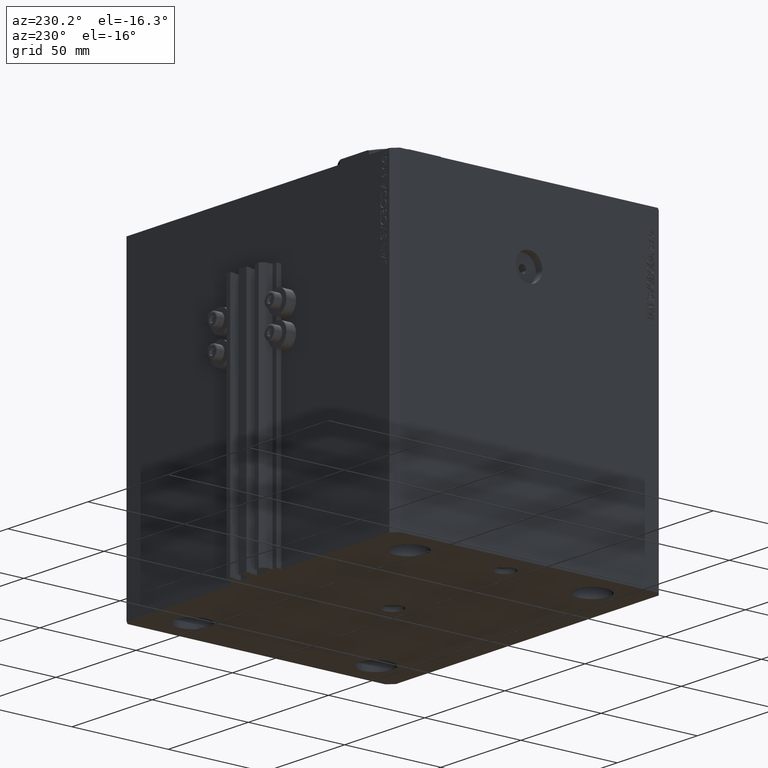
[diagram: clean part render]
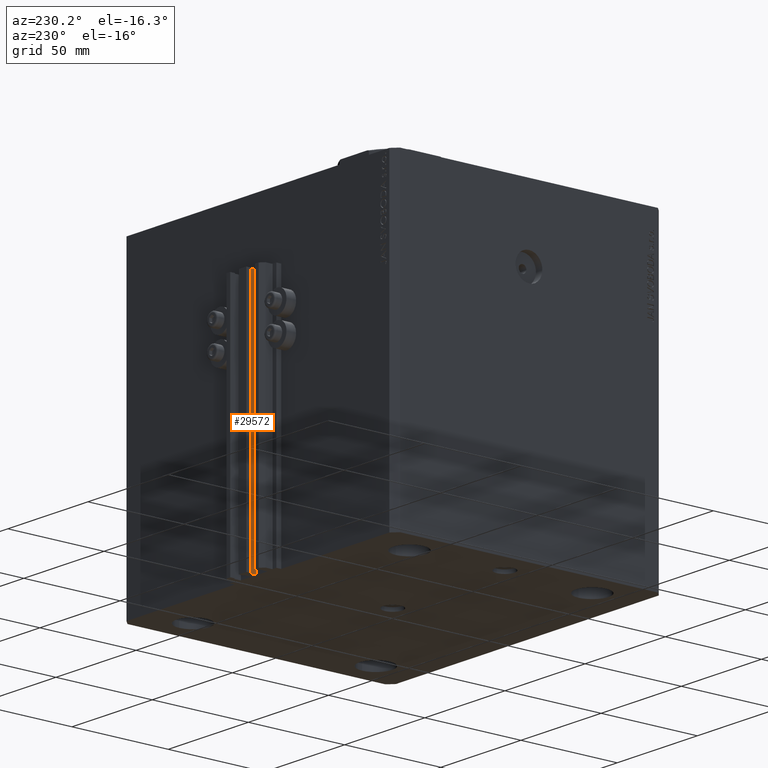
[diagram: same view with one face highlighted and labeled with its STEP entity id]
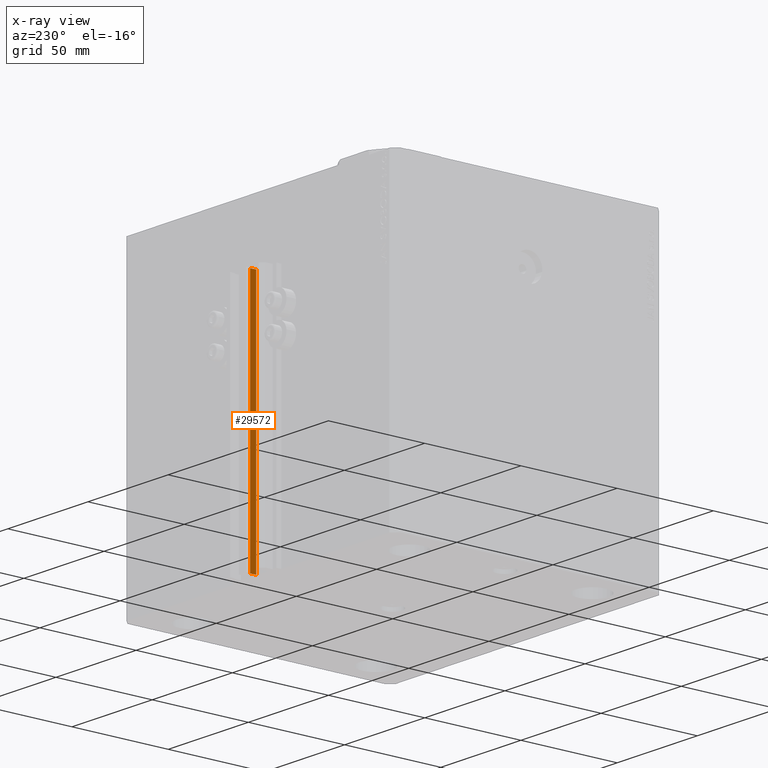
[diagram: x-ray of the same camera — body ghosted, the highlighted face saturated]
A machine part, auxiliary view. The second image highlights one B-rep face of the part: STEP entity #29572.
The next image is the same camera in x-ray: the body ghosted, the highlighted face saturated — about 0% of this face is hidden behind the body in this view.
In plain terms, the highlighted planar face has unit normal (-1, 0, 0).
Its self-contained STEP definition (entity closure, byte-faithful):
#2054 = LINE ( 'NONE', #42999, #44628 ) ;
#2714 = LINE ( 'NONE', #17308, #17366 ) ;
#2895 = CARTESIAN_POINT ( 'NONE',  ( -1.600000000000000533, 75.40000000000001990, -160.0000000000000000 ) ) ;
#2909 = ORIENTED_EDGE ( 'NONE', *, *, #36183, .T. ) ;
#4504 = VECTOR ( 'NONE', #41848, 1000.000000000000000 ) ;
#5655 = CARTESIAN_POINT ( 'NONE',  ( -1.599999999999997868, 75.40000000000001990, -33.00000000000000000 ) ) ;
#6175 = CARTESIAN_POINT ( 'NONE',  ( -1.600000000000000755, 72.20000000000001705, -33.00000000000000000 ) ) ;
#8497 = ORIENTED_EDGE ( 'NONE', *, *, #41176, .F. ) ;
#9283 = LINE ( 'NONE', #38502, #4504 ) ;
#9360 = PLANE ( 'NONE',  #27246 ) ;
#9909 = EDGE_CURVE ( 'NONE', #18674, #45426, #2054, .T. ) ;
#11500 = CARTESIAN_POINT ( 'NONE',  ( -1.599999999999997868, 75.40000000000001990, -160.0000000000000000 ) ) ;
#11728 = DIRECTION ( 'NONE',  ( 0.000000000000000000, 0.000000000000000000, 1.000000000000000000 ) ) ;
#17112 = EDGE_LOOP ( 'NONE', ( #38678, #8497, #2909, #23739 ) ) ;
#17308 = CARTESIAN_POINT ( 'NONE',  ( -1.600000000000000533, 75.40000000000001990, -33.00000000000000000 ) ) ;
#17366 = VECTOR ( 'NONE', #35760, 1000.000000000000000 ) ;
#17830 = DIRECTION ( 'NONE',  ( 0.000000000000000000, 0.000000000000000000, 1.000000000000000000 ) ) ;
#18674 = VERTEX_POINT ( 'NONE', #36890 ) ;
#22218 = VERTEX_POINT ( 'NONE', #36065 ) ;
#22501 = LINE ( 'NONE', #11500, #45033 ) ;
#23739 = ORIENTED_EDGE ( 'NONE', *, *, #9909, .T. ) ;
#27246 = AXIS2_PLACEMENT_3D ( 'NONE', #2895, #38583, #35237 ) ;
#29572 = ADVANCED_FACE ( 'NONE', ( #42652 ), #9360, .T. ) ;
#29758 = VERTEX_POINT ( 'NONE', #5655 ) ;
#30971 = EDGE_CURVE ( 'NONE', #29758, #45426, #2714, .T. ) ;
#35237 = DIRECTION ( 'NONE',  ( -6.776263578034385456E-17, -1.000000000000000000, 0.000000000000000000 ) ) ;
#35760 = DIRECTION ( 'NONE',  ( -6.776263578034385456E-17, -1.000000000000000000, 0.000000000000000000 ) ) ;
#36065 = CARTESIAN_POINT ( 'NONE',  ( -1.599999999999997868, 75.40000000000001990, -160.0000000000000000 ) ) ;
#36183 = EDGE_CURVE ( 'NONE', #22218, #18674, #9283, .T. ) ;
#36890 = CARTESIAN_POINT ( 'NONE',  ( -1.600000000000000755, 72.20000000000001705, -160.0000000000000000 ) ) ;
#38502 = CARTESIAN_POINT ( 'NONE',  ( -1.600000000000000533, 75.40000000000001990, -160.0000000000000000 ) ) ;
#38583 = DIRECTION ( 'NONE',  ( -1.000000000000000000, 6.776263578034385456E-17, 0.000000000000000000 ) ) ;
#38678 = ORIENTED_EDGE ( 'NONE', *, *, #30971, .F. ) ;
#41176 = EDGE_CURVE ( 'NONE', #22218, #29758, #22501, .T. ) ;
#41848 = DIRECTION ( 'NONE',  ( -6.776263578034385456E-17, -1.000000000000000000, 0.000000000000000000 ) ) ;
#42652 = FACE_OUTER_BOUND ( 'NONE', #17112, .T. ) ;
#42999 = CARTESIAN_POINT ( 'NONE',  ( -1.600000000000000755, 72.20000000000001705, -160.0000000000000000 ) ) ;
#44628 = VECTOR ( 'NONE', #17830, 1000.000000000000000 ) ;
#45033 = VECTOR ( 'NONE', #11728, 1000.000000000000000 ) ;
#45426 = VERTEX_POINT ( 'NONE', #6175 ) ;